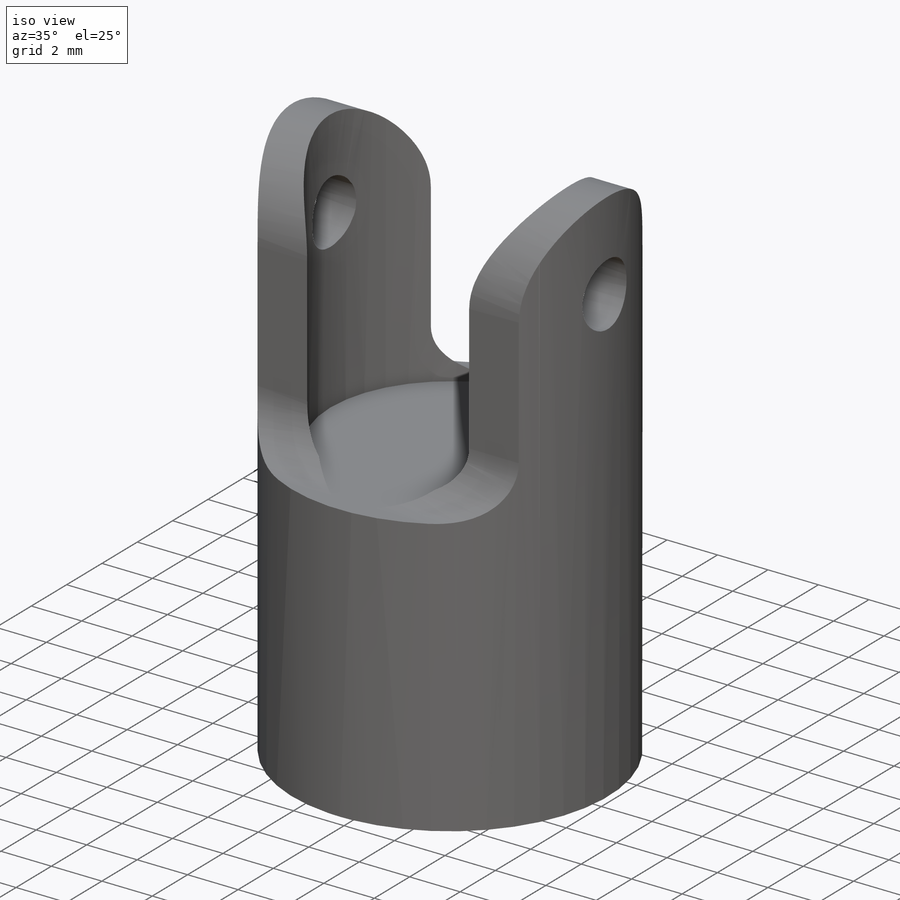
[diagram: iso view]
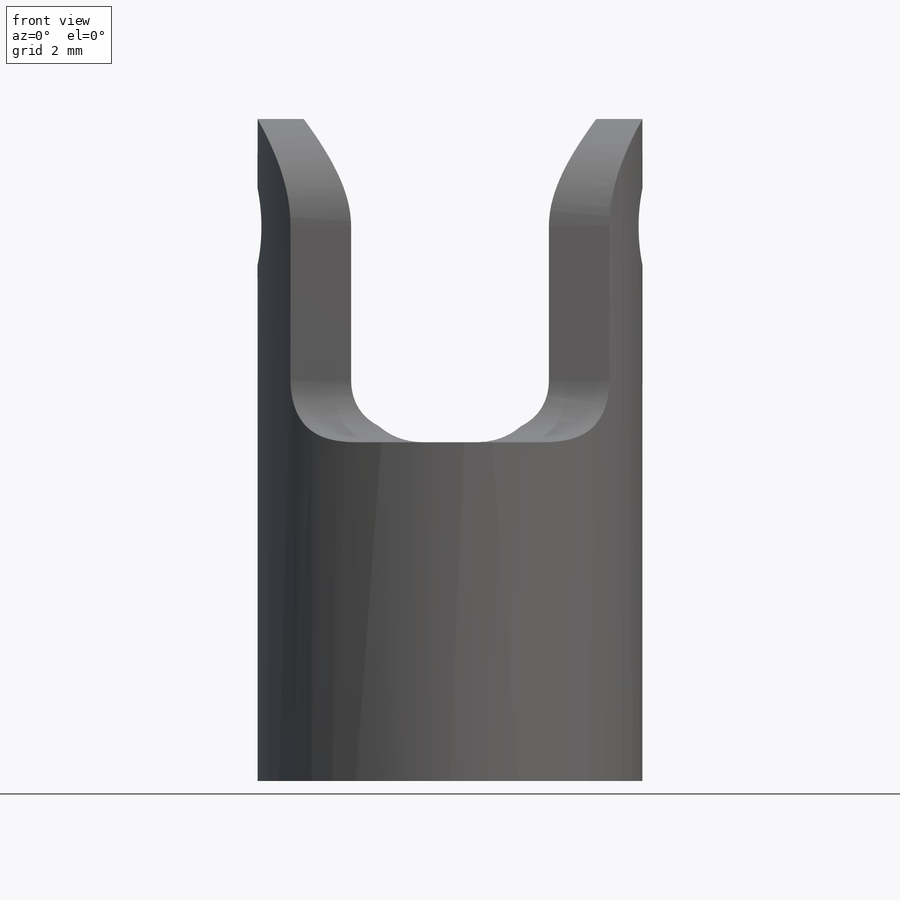
[diagram: front view]
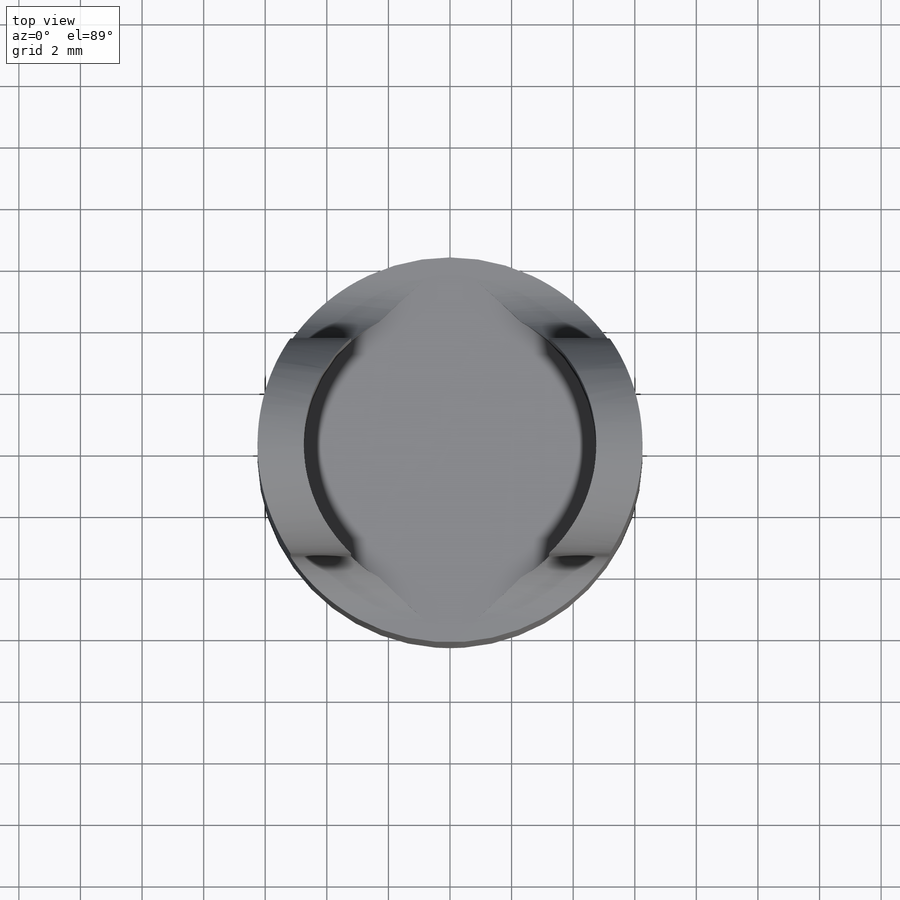
[diagram: top view]
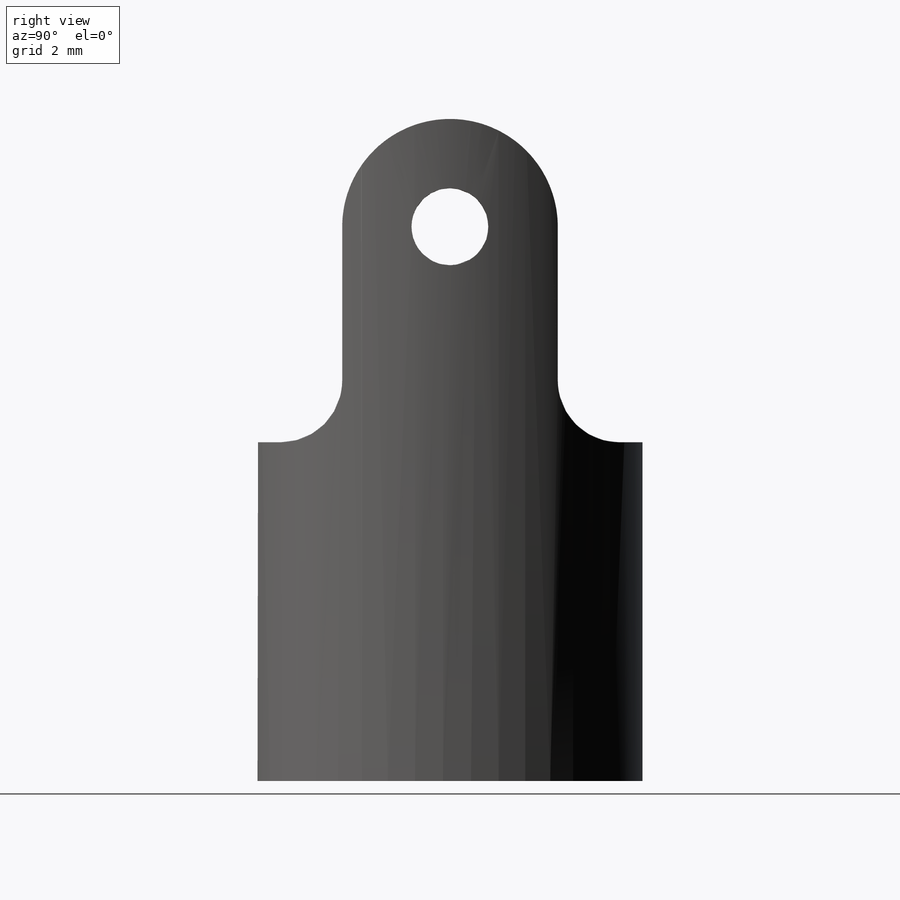
[diagram: right view]
SOLIDWORKS PART (.sldprt)
format: sldprt  version: not decoded by parser v0  size: 539,648 bytes
history: native  units: mm
features: sketch x7, cut_extrude x4, extrude x3, fillet x3, material x1, mirror x1 (+15 scaffold rows collapsed)
feature tree (34):
  scaffold x15  (default folders/planes/origin — collapsed)
  material  "PVC Rigid"
  sketch  "Sketch1"  dims[D1=9.5mm D2=12.5mm]
  extrude  "Extrude1"  Depth=11mm
  sketch  "Sketch2"  dims[D2=7.0mm D3=3.5mm D1=0.0mm]
  extrude  "Extrude2"  Depth=10.5mm
  fillet  "Fillet1"  [1 undecoded]
  fillet  "Fillet4"  Radius=2mm
  fillet  "Fillet5"  Radius=2mm
  sketch  "Sketch3"  dims[D1=2.5mm]
  cut_extrude  "Cut-Extrude1"  Depth=10.5mm
  mirror  "Mirror1"
  sketch  "Sketch5"  dims[D1=9.5mm]
  cut_extrude  "Cut-Extrude2"  Depth=27.5mm
  sketch  "Sketch6"  dims[D1=1.0mm]
  extrude  "Extrude3"  [1 undecoded]
  sketch  "Sketch8"
  cut_extrude  "Cut-Extrude3"  Depth=27.5mm
  sketch  "Sketch9"  dims[D1=6.0mm]
  cut_extrude  "Cut-Extrude4"  Depth=27.5mm
decode coverage: 14 of 18 modeling features carry decoded parameters
note: 2 parameter values undecoded
note: suppression state not decoded; provenance and decode notes live in map.json
